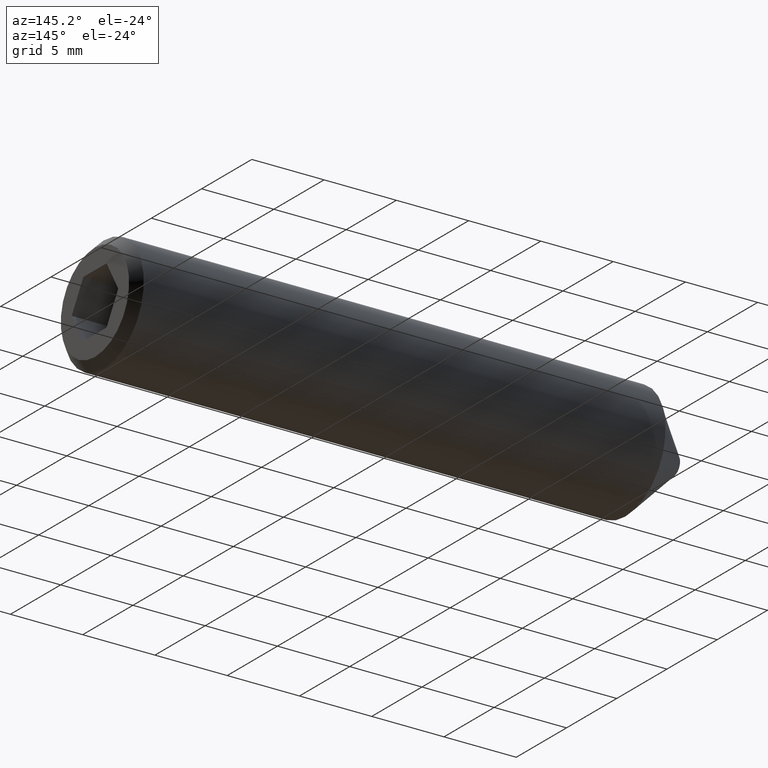
[diagram: clean part render]
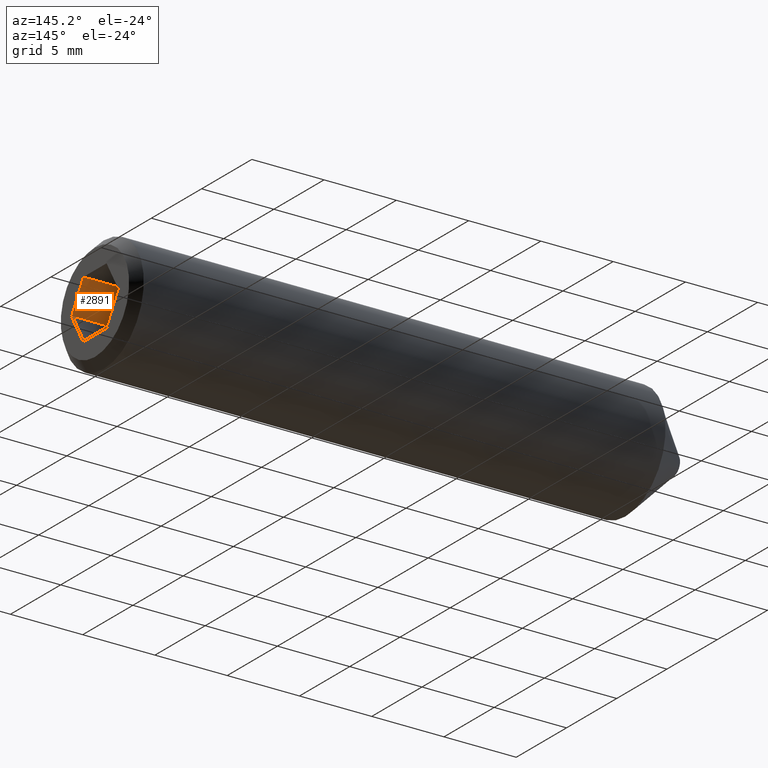
[diagram: same view with one face highlighted and labeled with its STEP entity id]
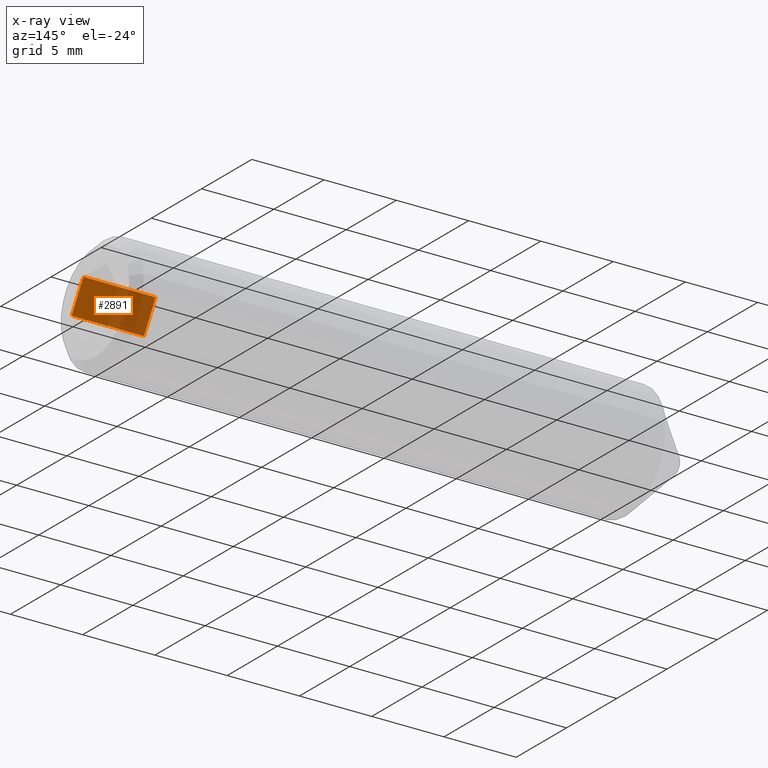
[diagram: x-ray of the same camera — body ghosted, the highlighted face saturated]
A machine part, auxiliary view. The second image highlights one B-rep face of the part: STEP entity #2891.
The next image is the same camera in x-ray: the body ghosted, the highlighted face saturated — about 50% of this face is hidden behind the body in this view.
In plain terms, the highlighted planar face has unit normal (-0, -0.866, 0.5).
Its self-contained STEP definition (entity closure, byte-faithful):
#422 = AXIS2_PLACEMENT_3D ( 'NONE', #11516, #9692, #6277 ) ;
#482 = EDGE_LOOP ( 'NONE', ( #10042, #9002, #3704, #6169 ) ) ;
#541 = CARTESIAN_POINT ( 'NONE',  ( 40.00000000000000000, -1.154700538379251000, 2.000000000000000000 ) ) ;
#739 = CARTESIAN_POINT ( 'NONE',  ( 35.00000000000000000, -1.154700538379251000, 1.999999999999999600 ) ) ;
#818 = DIRECTION ( 'NONE',  ( 0.0000000000000000000, -0.4999999999999999400, -0.8660254037844386000 ) ) ;
#1337 = FACE_OUTER_BOUND ( 'NONE', #482, .T. ) ;
#1652 = EDGE_CURVE ( 'NONE', #5751, #6858, #8094, .T. ) ;
#2891 = ADVANCED_FACE ( 'NONE', ( #1337 ), #3475, .F. ) ;
#3475 = PLANE ( 'NONE',  #422 ) ;
#3704 = ORIENTED_EDGE ( 'NONE', *, *, #5835, .F. ) ;
#4029 = EDGE_CURVE ( 'NONE', #7394, #6858, #8202, .T. ) ;
#4191 = CARTESIAN_POINT ( 'NONE',  ( 35.00000000000000000, -2.309401076758502500, 1.256016596573813500E-016 ) ) ;
#4339 = DIRECTION ( 'NONE',  ( 1.000000000000000000, -0.0000000000000000000, 6.123031769111886300E-017 ) ) ;
#5078 = VECTOR ( 'NONE', #818, 1000.000000000000100 ) ;
#5431 = VECTOR ( 'NONE', #4339, 1000.000000000000000 ) ;
#5751 = VERTEX_POINT ( 'NONE', #4191 ) ;
#5785 = CARTESIAN_POINT ( 'NONE',  ( 40.00000000000000000, -2.309401076758502900, 2.168404344971008900E-016 ) ) ;
#5835 = EDGE_CURVE ( 'NONE', #10289, #5751, #9926, .T. ) ;
#6169 = ORIENTED_EDGE ( 'NONE', *, *, #7821, .T. ) ;
#6277 = DIRECTION ( 'NONE',  ( 0.0000000000000000000, -0.5000000000000000000, -0.8660254037844386000 ) ) ;
#6490 = CARTESIAN_POINT ( 'NONE',  ( 35.00000000000000000, -2.309401076758502500, 1.256016596573813500E-016 ) ) ;
#6858 = VERTEX_POINT ( 'NONE', #5785 ) ;
#7049 = CARTESIAN_POINT ( 'NONE',  ( 35.00000000000000000, -1.154700538379251000, 1.999999999999999600 ) ) ;
#7394 = VERTEX_POINT ( 'NONE', #541 ) ;
#7414 = DIRECTION ( 'NONE',  ( 0.0000000000000000000, -0.4999999999999999400, -0.8660254037844386000 ) ) ;
#7821 = EDGE_CURVE ( 'NONE', #10289, #7394, #10566, .T. ) ;
#8094 = LINE ( 'NONE', #6490, #10240 ) ;
#8202 = LINE ( 'NONE', #9301, #9665 ) ;
#8259 = CARTESIAN_POINT ( 'NONE',  ( 35.00000000000000000, -1.154700538379251000, 1.999999999999999600 ) ) ;
#8326 = DIRECTION ( 'NONE',  ( 1.000000000000000000, -0.0000000000000000000, 6.123031769111886300E-017 ) ) ;
#9002 = ORIENTED_EDGE ( 'NONE', *, *, #1652, .F. ) ;
#9301 = CARTESIAN_POINT ( 'NONE',  ( 40.00000000000000000, -1.154700538379251000, 2.000000000000000000 ) ) ;
#9665 = VECTOR ( 'NONE', #7414, 1000.000000000000100 ) ;
#9692 = DIRECTION ( 'NONE',  ( -3.061515884555943800E-017, -0.8660254037844387100, 0.5000000000000001100 ) ) ;
#9926 = LINE ( 'NONE', #739, #5078 ) ;
#10042 = ORIENTED_EDGE ( 'NONE', *, *, #4029, .T. ) ;
#10240 = VECTOR ( 'NONE', #8326, 1000.000000000000000 ) ;
#10289 = VERTEX_POINT ( 'NONE', #8259 ) ;
#10566 = LINE ( 'NONE', #7049, #5431 ) ;
#11516 = CARTESIAN_POINT ( 'NONE',  ( 35.00000000000000000, -1.154700538379251000, 1.999999999999999600 ) ) ;